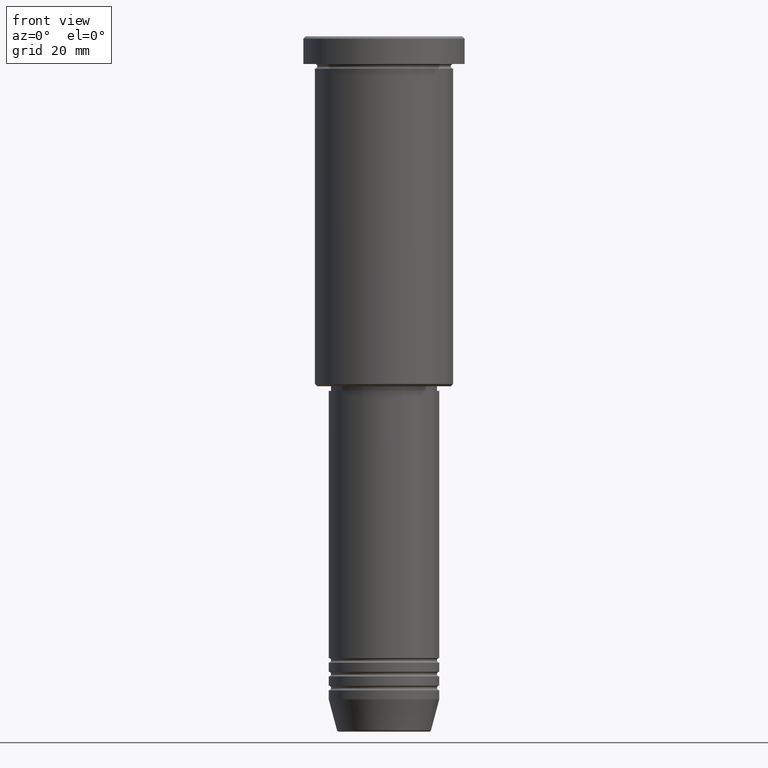
[diagram: clean part render]
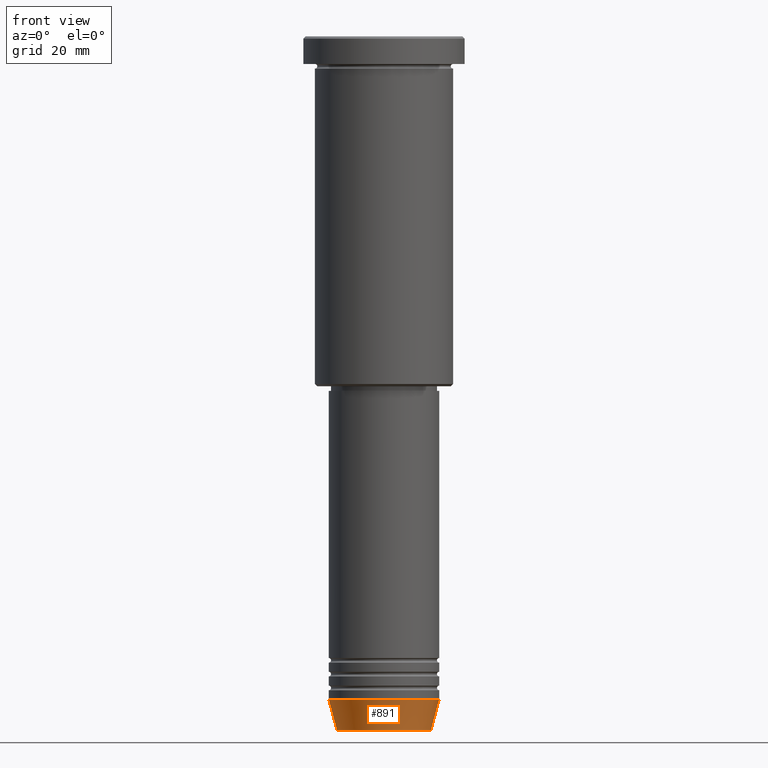
[diagram: same view with one face highlighted and labeled with its STEP entity id]
A machine part, front view. The second image highlights one B-rep face of the part: STEP entity #891.
In plain terms, the highlighted conical surface has half-angle 15 deg.
Its self-contained STEP definition (entity closure, byte-faithful):
#29 = CONICAL_SURFACE ( 'NONE', #683, 12.00000000000000000, 0.2617993877991500740 ) ;
#46 = VECTOR ( 'NONE', #557, 1000.000000000000000 ) ;
#65 = ORIENTED_EDGE ( 'NONE', *, *, #1161, .F. ) ;
#92 = CARTESIAN_POINT ( 'NONE',  ( 0.000000000000000000, 0.000000000000000000, -144.0000000000000000 ) ) ;
#115 = VERTEX_POINT ( 'NONE', #315 ) ;
#116 = ORIENTED_EDGE ( 'NONE', *, *, #352, .T. ) ;
#225 = VERTEX_POINT ( 'NONE', #541 ) ;
#238 = ORIENTED_EDGE ( 'NONE', *, *, #910, .F. ) ;
#255 = CIRCLE ( 'NONE', #428, 10.22365507213719660 ) ;
#263 = VERTEX_POINT ( 'NONE', #711 ) ;
#269 = VERTEX_POINT ( 'NONE', #985 ) ;
#271 = ORIENTED_EDGE ( 'NONE', *, *, #523, .T. ) ;
#315 = CARTESIAN_POINT ( 'NONE',  ( 10.22365507213719660, 0.000000000000000000, -150.6294095225512422 ) ) ;
#325 = DIRECTION ( 'NONE',  ( 1.000000000000000000, 0.000000000000000000, 0.000000000000000000 ) ) ;
#338 = DIRECTION ( 'NONE',  ( -0.000000000000000000, -0.000000000000000000, 1.000000000000000000 ) ) ;
#352 = EDGE_CURVE ( 'NONE', #115, #269, #401, .T. ) ;
#401 = LINE ( 'NONE', #729, #46 ) ;
#428 = AXIS2_PLACEMENT_3D ( 'NONE', #595, #1135, #759 ) ;
#432 = CIRCLE ( 'NONE', #840, 12.00000000000000000 ) ;
#523 = EDGE_CURVE ( 'NONE', #225, #115, #255, .T. ) ;
#541 = CARTESIAN_POINT ( 'NONE',  ( -10.22365507213719837, 1.360806402472383336E-15, -150.6294095225512422 ) ) ;
#557 = DIRECTION ( 'NONE',  ( 0.2588190451025213501, 0.000000000000000000, 0.9659258262890680902 ) ) ;
#595 = CARTESIAN_POINT ( 'NONE',  ( 0.000000000000000000, 0.000000000000000000, -150.6294095225512422 ) ) ;
#604 = EDGE_LOOP ( 'NONE', ( #238, #271, #116, #65 ) ) ;
#609 = LINE ( 'NONE', #789, #799 ) ;
#679 = DIRECTION ( 'NONE',  ( -0.2588190451025213501, 3.169619151431772337E-17, 0.9659258262890680902 ) ) ;
#683 = AXIS2_PLACEMENT_3D ( 'NONE', #1155, #338, #325 ) ;
#711 = CARTESIAN_POINT ( 'NONE',  ( -12.00000000000000000, 1.469576158976823947E-15, -144.0000000000000000 ) ) ;
#729 = CARTESIAN_POINT ( 'NONE',  ( 12.00000000000000000, 0.000000000000000000, -144.0000000000000000 ) ) ;
#759 = DIRECTION ( 'NONE',  ( 1.000000000000000000, 0.000000000000000000, 0.000000000000000000 ) ) ;
#789 = CARTESIAN_POINT ( 'NONE',  ( -12.00000000000000000, 1.469576158976823947E-15, -144.0000000000000000 ) ) ;
#799 = VECTOR ( 'NONE', #679, 1000.000000000000000 ) ;
#840 = AXIS2_PLACEMENT_3D ( 'NONE', #92, #983, #890 ) ;
#890 = DIRECTION ( 'NONE',  ( 1.000000000000000000, 0.000000000000000000, 0.000000000000000000 ) ) ;
#891 = ADVANCED_FACE ( 'NONE', ( #978 ), #29, .T. ) ;
#910 = EDGE_CURVE ( 'NONE', #225, #263, #609, .T. ) ;
#978 = FACE_OUTER_BOUND ( 'NONE', #604, .T. ) ;
#983 = DIRECTION ( 'NONE',  ( -0.000000000000000000, -0.000000000000000000, 1.000000000000000000 ) ) ;
#985 = CARTESIAN_POINT ( 'NONE',  ( 12.00000000000000000, 0.000000000000000000, -144.0000000000000000 ) ) ;
#1135 = DIRECTION ( 'NONE',  ( -0.000000000000000000, -0.000000000000000000, 1.000000000000000000 ) ) ;
#1155 = CARTESIAN_POINT ( 'NONE',  ( 0.000000000000000000, 0.000000000000000000, -144.0000000000000000 ) ) ;
#1161 = EDGE_CURVE ( 'NONE', #263, #269, #432, .T. ) ;